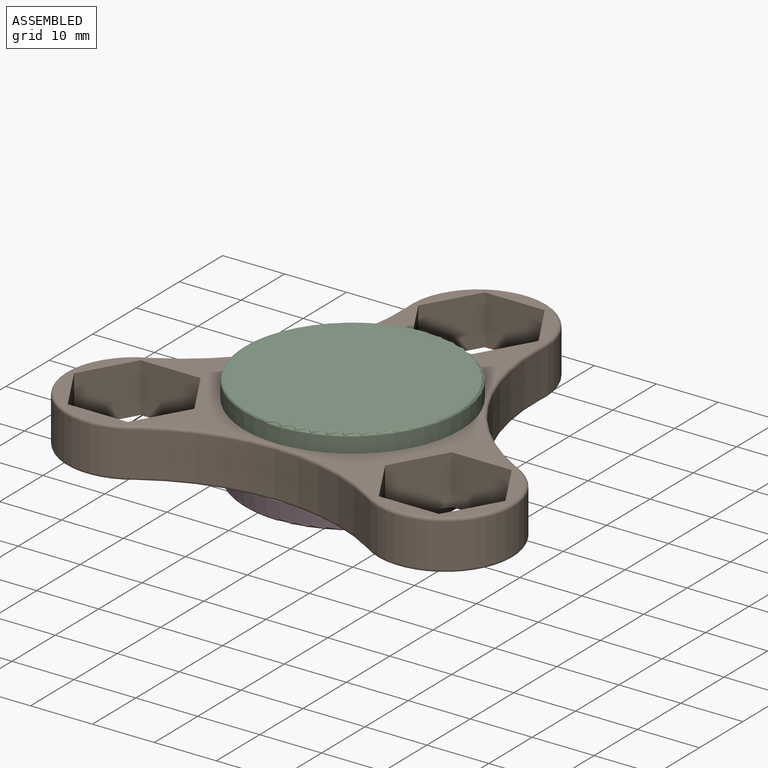
[diagram: assembled view]
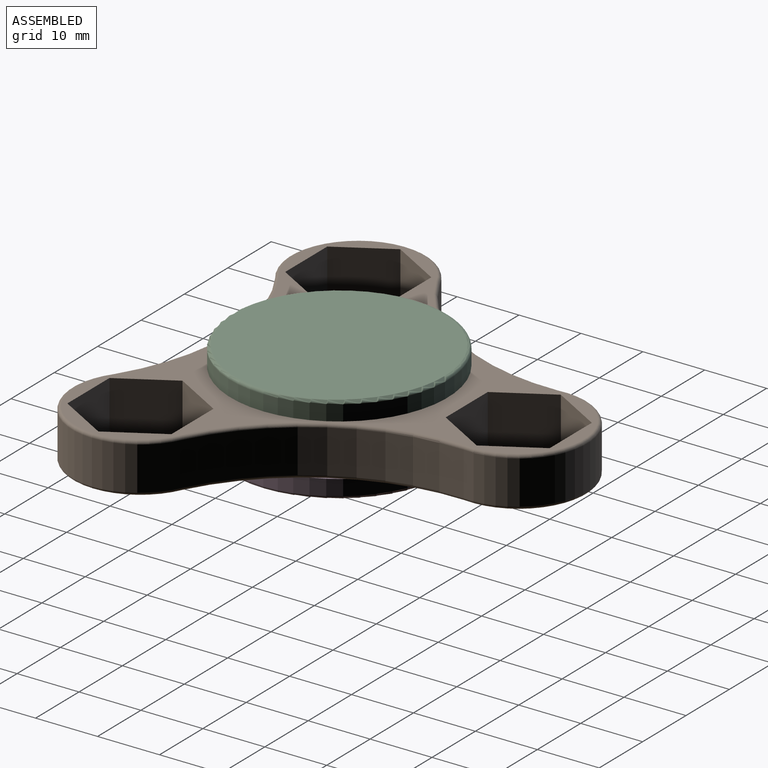
[diagram: assembled view, second angle]
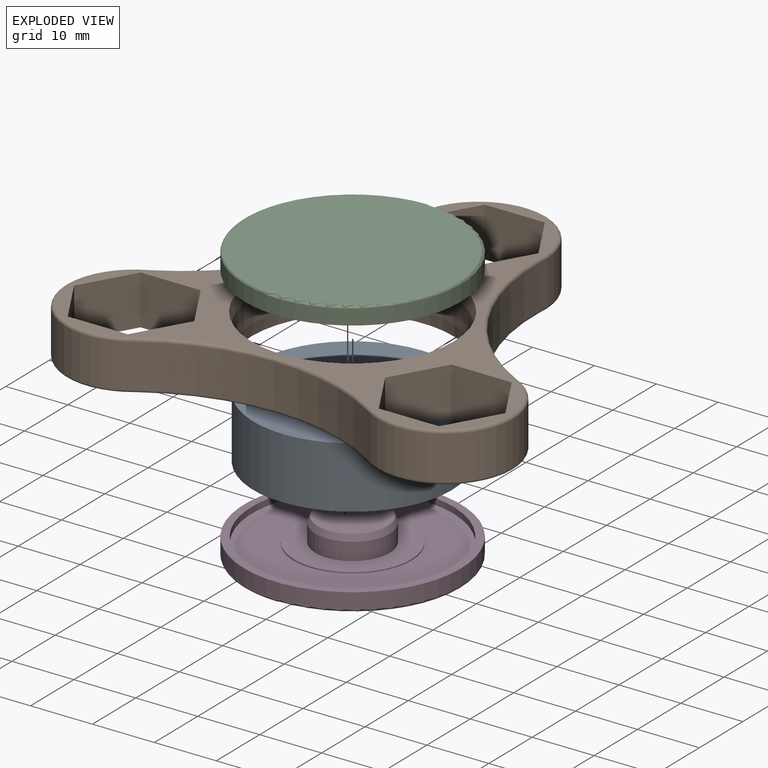
[diagram: exploded view]
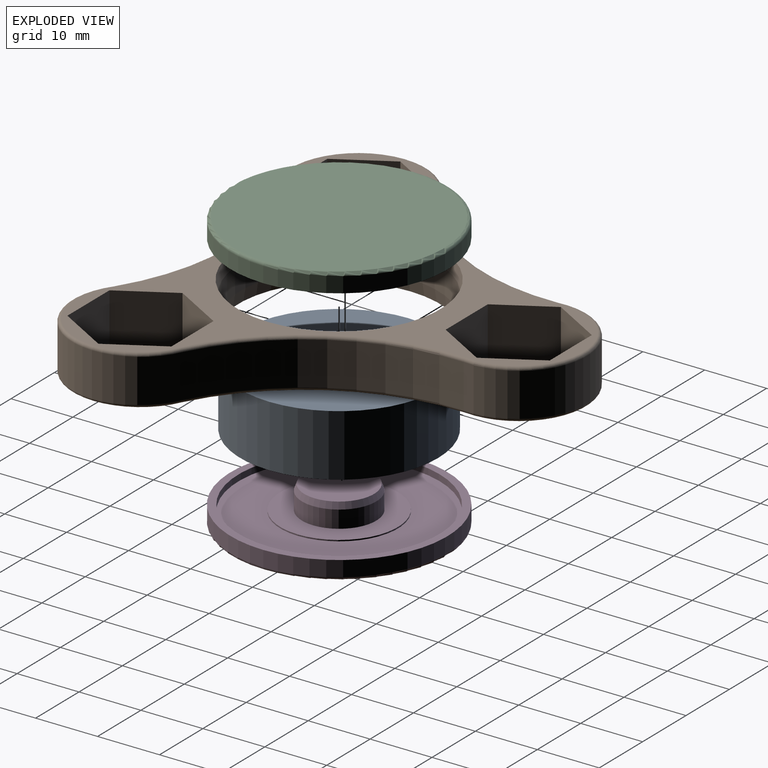
[diagram: exploded view, second angle]
ASSEMBLY  parts=4 mates=3
PART A: 4 faces, bbox 32x32x10 mm
  f0: cylinder r=6mm len=12mm, axis (0,0,-1), area 377mm2, adj f2,f3
  f1: cylinder r=16mm len=32mm, axis (0,0,-1), area 1005.3mm2, adj f2,f3
  f2: plane 32x32mm, normal (0,0,1), area 691.2mm2, adj f0,f1
  f3: plane 32x32mm, normal (0,0,-1), area 691.2mm2, adj f0,f1
PART B: 50 faces, bbox 74x67.3x8 mm
  f0: plane 9.7x8mm, normal (0,-1,0), area 77.6mm2, adj f1,f23,f28,f29
  f1: plane 8.4x8mm, normal (-0.87,-0.5,0), area 77.6mm2, adj f0,f2,f28,f29
  f2: plane 8.4x8mm, normal (-0.87,0.5,0), area 77.6mm2, adj f1,f3,f28,f29
  f3: plane 9.7x8mm, normal (0,1,0), area 77.6mm2, adj f2,f4,f28,f29
  f4: plane 8.4x8mm, normal (0.87,0.5,0), area 77.6mm2, adj f3,f23,f28,f29
  f5: plane 8.4x8mm, normal (-0.87,0.5,0), area 77.6mm2, adj f6,f24,f28,f29
  f6: plane 9.7x8mm, normal (0,1,0), area 77.6mm2, adj f5,f7,f28,f29
  f7: plane 8.4x8mm, normal (0.87,0.5,0), area 77.6mm2, adj f6,f8,f28,f29
  f8: plane 8.4x8mm, normal (0.87,-0.5,0), area 77.6mm2, adj f7,f9,f28,f29
  f9: plane 9.7x8mm, normal (0,-1,0), area 77.6mm2, adj f8,f24,f28,f29
  f10: plane 8.4x8mm, normal (-0.87,0.5,0), area 77.6mm2, adj f11,f25,f28,f29
  f11: plane 9.7x8mm, normal (0,1,0), area 77.6mm2, adj f10,f12,f28,f29
  f12: plane 8.4x8mm, normal (0.87,0.5,0), area 77.6mm2, adj f11,f13,f28,f29
  f13: plane 8.4x8mm, normal (0.87,-0.5,0), area 77.6mm2, adj f12,f14,f28,f29
  f14: plane 9.7x8mm, normal (0,-1,0), area 77.6mm2, adj f13,f25,f28,f29
  f15: cylinder r=11mm len=22mm, axis (0,0,-1), area 258.8mm2, adj f16,f26,f32,f41
  f16: cylinder r=35mm len=18.8mm, axis (0,0,-1), area 137.3mm2, adj f15,f17,f33,f42
  f17: cylinder r=35mm len=13.95mm, axis (0,0,-1), area 137.3mm2, adj f16,f18,f35,f44
  f18: cylinder r=11mm len=21.07mm, axis (0,0,-1), area 258.8mm2, adj f17,f19,f37,f46
  f19: cylinder r=35mm len=18.61mm, axis (0,0,-1), area 137.3mm2, adj f18,f20,f39,f48
  f20: cylinder r=35mm len=18.61mm, axis (0,0,-1), area 137.3mm2, adj f19,f21,f40,f49
  f21: cylinder r=11mm len=21.07mm, axis (0,0,-1), area 258.8mm2, adj f20,f22,f38,f47
  f22: cylinder r=35mm len=13.95mm, axis (0,0,-1), area 137.3mm2, adj f21,f26,f36,f45
  f23: plane 8.4x8mm, normal (0.87,-0.5,0), area 77.6mm2, adj f0,f4,f28,f29
  f24: plane 8.4x8mm, normal (-0.87,-0.5,0), area 77.6mm2, adj f5,f9,f28,f29
  f25: plane 8.4x8mm, normal (-0.87,-0.5,0), area 77.6mm2, adj f10,f14,f28,f29
  f26: cylinder r=35mm len=18.8mm, axis (0,0,-1), area 137.3mm2, adj f15,f22,f34,f43
  f27: cylinder r=16mm len=32mm, axis (0,0,-1), area 402.1mm2, adj f30,f31
  f28: plane 71.23x64.5mm, normal (0,0,1), area 772.8mm2, adj f0,f1,f2,f3,f4,f5,f6,f7
  f29: plane 71.23x64.5mm, normal (0,0,-1), area 772.8mm2, adj f0,f1,f2,f3,f4,f5,f6,f7
  f30: cone r=16.35mm half-angle=10deg, axis (0,0,-1), area 206.4mm2, adj f27,f29
  f31: cone r=16mm half-angle=10deg, axis (0,0,1), area 206.4mm2, adj f27,f28
  f32: torus R=10.5mm, axis (0,0,1), area 28.6mm2, adj f15,f29,f33,f34
  f33: torus R=35.5mm, axis (0,0,1), area 15.5mm2, adj f16,f29,f32,f35
  f34: torus R=35.5mm, axis (0,0,1), area 15.5mm2, adj f26,f29,f32,f36
  f35: torus R=35.5mm, axis (0,0,1), area 15.5mm2, adj f17,f29,f33,f37
  f36: torus R=35.5mm, axis (0,0,1), area 15.5mm2, adj f22,f29,f34,f38
  f37: torus R=10.5mm, axis (0,0,1), area 28.6mm2, adj f18,f29,f35,f39
  f38: torus R=10.5mm, axis (0,0,1), area 28.6mm2, adj f21,f29,f36,f40
  f39: torus R=35.5mm, axis (0,0,1), area 15.5mm2, adj f19,f29,f37,f40
  f40: torus R=35.5mm, axis (0,0,1), area 15.5mm2, adj f20,f29,f38,f39
  f41: torus R=10.5mm, axis (0,0,1), area 28.6mm2, adj f15,f28,f42,f43
  f42: torus R=35.5mm, axis (0,0,1), area 15.5mm2, adj f16,f28,f41,f44
  f43: torus R=35.5mm, axis (0,0,1), area 15.5mm2, adj f26,f28,f41,f45
  f44: torus R=35.5mm, axis (0,0,1), area 15.5mm2, adj f17,f28,f42,f46
  f45: torus R=35.5mm, axis (0,0,1), area 15.5mm2, adj f22,f28,f43,f47
  f46: torus R=10.5mm, axis (0,0,1), area 28.6mm2, adj f18,f28,f44,f48
  f47: torus R=10.5mm, axis (0,0,1), area 28.6mm2, adj f21,f28,f45,f49
  f48: torus R=35.5mm, axis (0,0,1), area 15.5mm2, adj f19,f28,f46,f49
  f49: torus R=35.5mm, axis (0,0,1), area 15.5mm2, adj f20,f28,f47,f48
PART C: 11 faces, bbox 37.9x37.9x6 mm
  f0: cylinder r=17.5mm len=35mm, axis (0,0,-1), area 274.9mm2, adj f1,f10
  f1: plane 35x35mm, normal (0,0,1), area 132.5mm2, adj f0,f3
  f2: plane 34x34mm, normal (0,0,-1), area 907.9mm2, adj f10
  f3: cylinder r=16.25mm len=32.5mm, axis (0,0,1), area 102.1mm2, adj f1,f4
  f4: plane 32.5x32.5mm, normal (0,0,1), area 546mm2, adj f3,f5
  f5: cylinder r=9.5mm len=19mm, axis (0,0,-1), area 11.9mm2, adj f4,f6
  f6: plane 19x19mm, normal (0,0,1), area 170.4mm2, adj f5,f9
  f7: plane 11.27x11.27mm, normal (0,0,1), area 99.8mm2, adj f8
  f8: cone r=5.64mm half-angle=20deg, axis (0,0,-1), area 38.9mm2, adj f7,f9
  f9: cylinder r=6mm len=12mm, axis (0,0,-1), area 105.6mm2, adj f6,f8
  f10: torus R=17mm, axis (0,0,1), area 85.5mm2, adj f0,f2
PART D: same geometry as C
PLACE A t=(-55,59.3,2.2)mm
PLACE B t=(0,0,3.2)mm
PLACE C rot(axis=(-1,0,0),180deg) t=(53.08,-47.39,14.4)mm
PLACE D t=(53.08,47.39,0)mm
MATE slider A.f0 <-> C.f0  axis (0,0,-1) through (0,0,12.2)mm
MATE fastened B.f27 <-> A.f0  axis (0,0,-1) through (0,0,7.2)mm
MATE slider D.f0 <-> A.f0  axis (0,0,-1) through (0,0,2.2)mm
